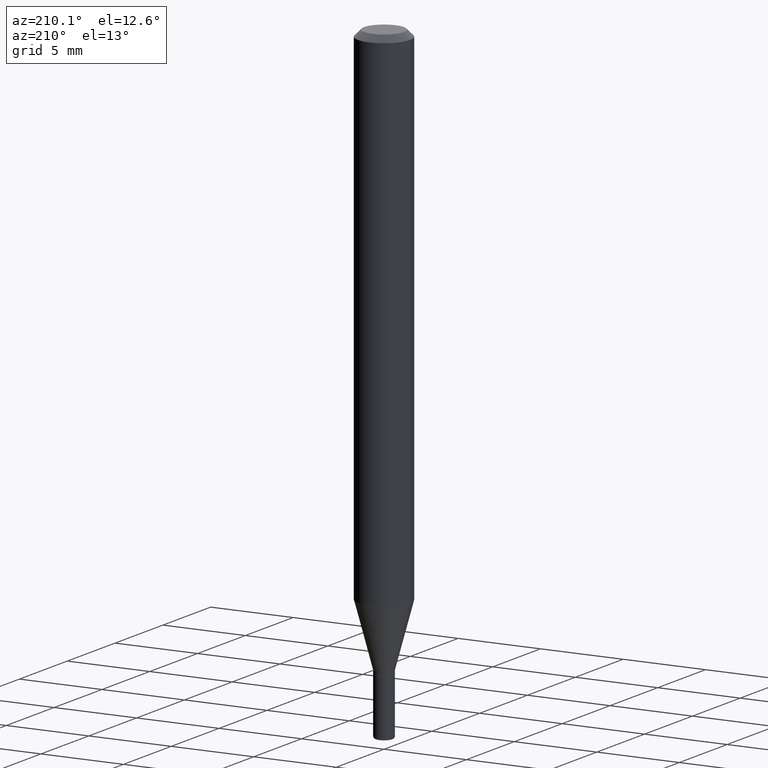
[diagram: clean part render]
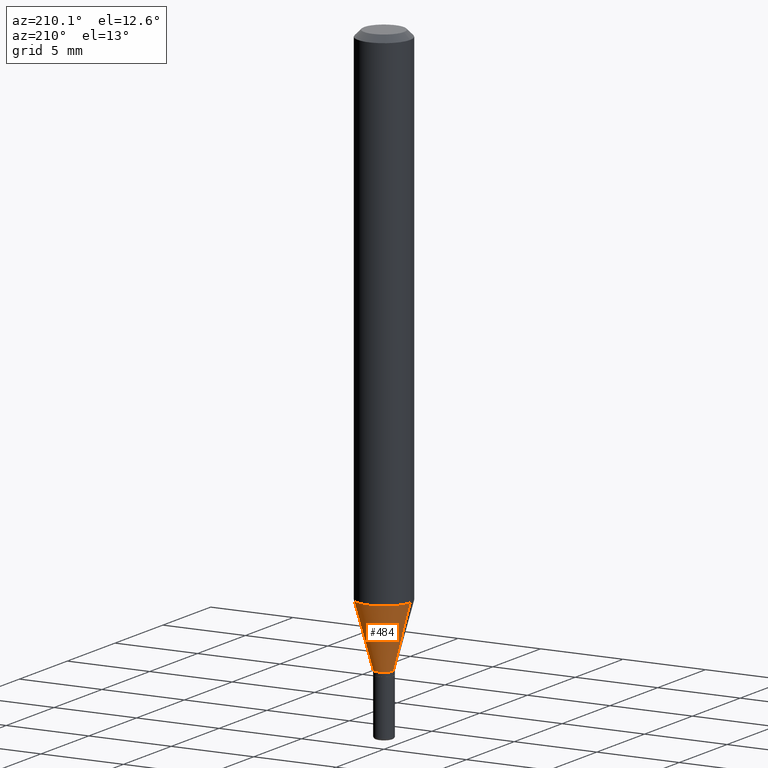
[diagram: same view with one face highlighted and labeled with its STEP entity id]
A machine part, auxiliary view. The second image highlights one B-rep face of the part: STEP entity #484.
In plain terms, the highlighted conical surface has half-angle 15 deg.
Its self-contained STEP definition (entity closure, byte-faithful):
#1 = DIRECTION ( 'NONE',  ( 0.2588190451025206840, 1.565188264969626504E-15, 0.9659258262890682012 ) ) ;
#16 = EDGE_CURVE ( 'NONE', #160, #79, #180, .T. ) ;
#25 = AXIS2_PLACEMENT_3D ( 'NONE', #199, #312, #195 ) ;
#79 = VERTEX_POINT ( 'NONE', #333 ) ;
#100 = DIRECTION ( 'NONE',  ( -0.2588190451025206840, 5.211531920934545520E-15, 0.9659258262890682012 ) ) ;
#122 = ORIENTED_EDGE ( 'NONE', *, *, #138, .T. ) ;
#126 = ORIENTED_EDGE ( 'NONE', *, *, #324, .F. ) ;
#133 = VECTOR ( 'NONE', #100, 39.37007874015748854 ) ;
#138 = EDGE_CURVE ( 'NONE', #308, #79, #377, .T. ) ;
#151 = LINE ( 'NONE', #201, #481 ) ;
#160 = VERTEX_POINT ( 'NONE', #502 ) ;
#172 = DIRECTION ( 'NONE',  ( -2.445468806185136597E-29, 3.491481338843145583E-15, 1.000000000000000000 ) ) ;
#177 = CARTESIAN_POINT ( 'NONE',  ( 0.02250000000000007896, -4.888073874380405630E-15, -1.355000000000000426 ) ) ;
#180 = CIRCLE ( 'NONE', #471, 0.06250000000000000000 ) ;
#195 = DIRECTION ( 'NONE',  ( 1.000000000000000000, -6.982962677686286432E-15, 0.000000000000000000 ) ) ;
#199 = CARTESIAN_POINT ( 'NONE',  ( 3.313610232380861411E-29, -4.730957214132463998E-15, -1.355000000000000426 ) ) ;
#201 = CARTESIAN_POINT ( 'NONE',  ( 0.02250000000000007896, -4.888073874380405630E-15, -1.355000000000000426 ) ) ;
#212 = DIRECTION ( 'NONE',  ( 1.000000000000000000, -6.982962677686286432E-15, 0.000000000000000000 ) ) ;
#241 = DIRECTION ( 'NONE',  ( -2.445468806185136597E-29, 3.491481338843145583E-15, 1.000000000000000000 ) ) ;
#277 = VERTEX_POINT ( 'NONE', #177 ) ;
#278 = FACE_OUTER_BOUND ( 'NONE', #355, .T. ) ;
#308 = VERTEX_POINT ( 'NONE', #511 ) ;
#312 = DIRECTION ( 'NONE',  ( -2.445468806185136597E-29, 3.491481338843145583E-15, 1.000000000000000000 ) ) ;
#324 = EDGE_CURVE ( 'NONE', #277, #160, #151, .T. ) ;
#325 = CARTESIAN_POINT ( 'NONE',  ( 2.948545679060552191E-29, -4.209741784122815192E-15, -1.205717967697245596 ) ) ;
#332 = AXIS2_PLACEMENT_3D ( 'NONE', #447, #241, #212 ) ;
#333 = CARTESIAN_POINT ( 'NONE',  ( -0.06250000000000000000, -3.765652574272752576E-15, -1.205717967697245596 ) ) ;
#342 = CARTESIAN_POINT ( 'NONE',  ( -0.02250000000000007896, -4.571085098586440920E-15, -1.355000000000000426 ) ) ;
#355 = EDGE_LOOP ( 'NONE', ( #437, #122, #496, #126 ) ) ;
#368 = DIRECTION ( 'NONE',  ( 1.000000000000000000, -6.982962677686270655E-15, 0.000000000000000000 ) ) ;
#377 = LINE ( 'NONE', #342, #133 ) ;
#437 = ORIENTED_EDGE ( 'NONE', *, *, #504, .T. ) ;
#447 = CARTESIAN_POINT ( 'NONE',  ( 3.313610232380861411E-29, -4.730957214132463998E-15, -1.355000000000000426 ) ) ;
#463 = CIRCLE ( 'NONE', #332, 0.02250000000000007896 ) ;
#471 = AXIS2_PLACEMENT_3D ( 'NONE', #325, #172, #368 ) ;
#481 = VECTOR ( 'NONE', #1, 39.37007874015748854 ) ;
#484 = ADVANCED_FACE ( 'NONE', ( #278 ), #498, .T. ) ;
#496 = ORIENTED_EDGE ( 'NONE', *, *, #16, .F. ) ;
#498 = CONICAL_SURFACE ( 'NONE', #25, 0.02250000000000007896, 0.2617993877991494078 ) ;
#502 = CARTESIAN_POINT ( 'NONE',  ( 0.06250000000000000000, -4.646176951478207651E-15, -1.205717967697245596 ) ) ;
#504 = EDGE_CURVE ( 'NONE', #277, #308, #463, .T. ) ;
#511 = CARTESIAN_POINT ( 'NONE',  ( -0.02250000000000007896, -4.168368836429596353E-15, -1.355000000000000426 ) ) ;